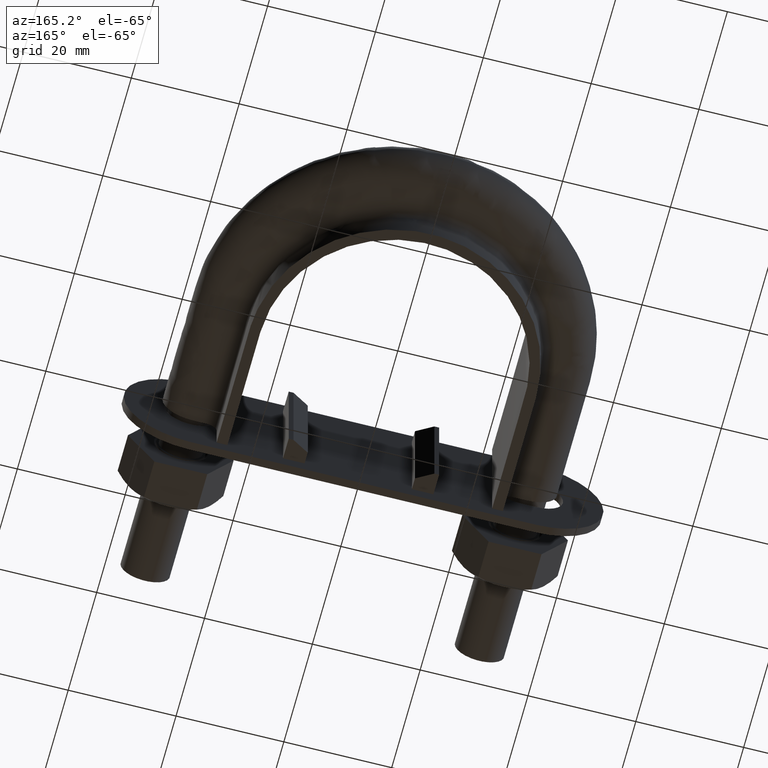
[diagram: clean part render]
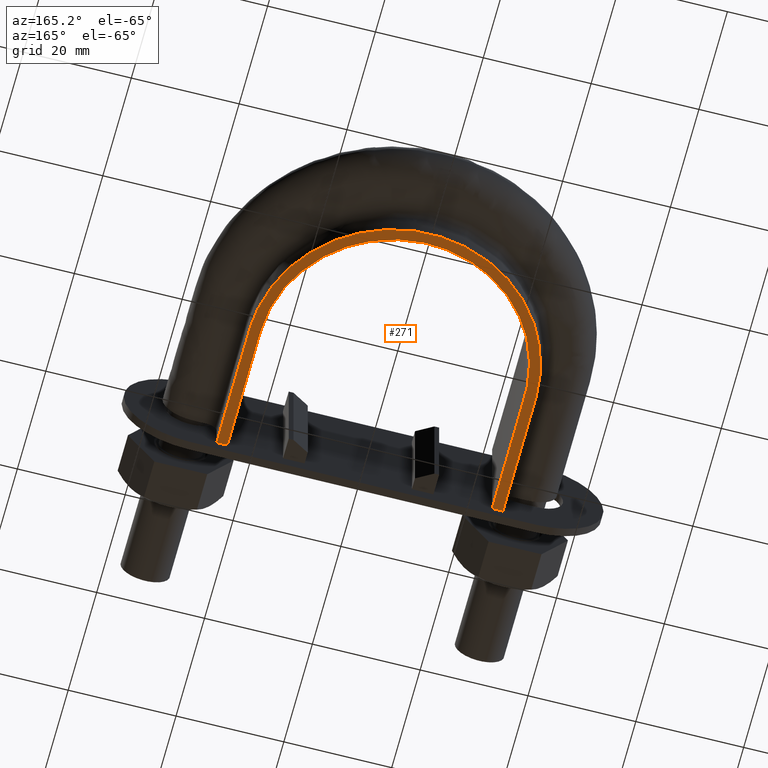
[diagram: same view with one face highlighted and labeled with its STEP entity id]
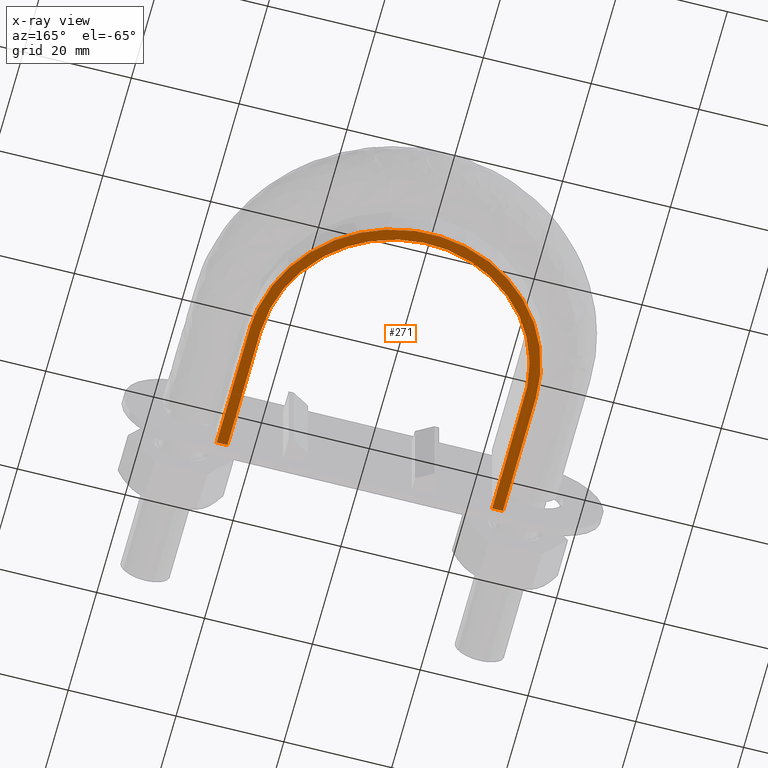
[diagram: x-ray of the same camera — body ghosted, the highlighted face saturated]
A machine part, auxiliary view. The second image highlights one B-rep face of the part: STEP entity #271.
The next image is the same camera in x-ray: the body ghosted, the highlighted face saturated — about 0% of this face is hidden behind the body in this view.
In plain terms, the highlighted planar face has unit normal (0, 0, 1).
Its self-contained STEP definition (entity closure, byte-faithful):
#271 = ADVANCED_FACE( '', ( #391 ), #392, .F. );
#391 = FACE_OUTER_BOUND( '', #649, .T. );
#392 = PLANE( '', #650 );
#649 = EDGE_LOOP( '', ( #1765, #1766, #1767, #1768 ) );
#650 = AXIS2_PLACEMENT_3D( '', #1769, #1770, #1771 );
#1765 = ORIENTED_EDGE( '', *, *, #2555, .F. );
#1766 = ORIENTED_EDGE( '', *, *, #2549, .F. );
#1767 = ORIENTED_EDGE( '', *, *, #2558, .T. );
#1768 = ORIENTED_EDGE( '', *, *, #2553, .F. );
#1769 = CARTESIAN_POINT( '', ( 40.0000000000000, 103.300000000000, -12.5000000000000 ) );
#1770 = DIRECTION( '', ( 0.000000000000000, 0.000000000000000, 1.00000000000000 ) );
#1771 = DIRECTION( '', ( 1.22460635382238E-016, 1.00000000000000, 0.000000000000000 ) );
#2549 = EDGE_CURVE( '', #2792, #2788, #2794, .T. );
#2553 = EDGE_CURVE( '', #2800, #2802, #2803, .T. );
#2555 = EDGE_CURVE( '', #2788, #2800, #2805, .F. );
#2558 = EDGE_CURVE( '', #2792, #2802, #2808, .T. );
#2788 = VERTEX_POINT( '', #3195 );
#2792 = VERTEX_POINT( '', #3201 );
#2794 = LINE( '', #3233, #3234 );
#2800 = VERTEX_POINT( '', #3250 );
#2802 = VERTEX_POINT( '', #3253 );
#2803 = LINE( '', #3254, #3255 );
#2805 = B_SPLINE_CURVE_WITH_KNOTS( '', 3, ( #3287, #3288, #3289, #3290, #3291, #3292, #3293, #3294, #3295, #3296, #3297, #3298, #3299, #3300, #3301, #3302, #3303 ), .UNSPECIFIED., .F., .F., ( 4, 3, 1, 1, 1, 1, 1, 1, 1, 3, 4 ), ( -7.85424354243542, -7.00000000000000, -6.50000000000000, -6.00000000000000, -5.00000000000000, -4.00000000000000, -3.00000000000000, -2.00000000000000, -1.50000000000000, -1.00000000000000, -0.145756457564576 ), .UNSPECIFIED. );
#2808 = B_SPLINE_CURVE_WITH_KNOTS( '', 3, ( #3388, #3389, #3390, #3391, #3392, #3393, #3394, #3395, #3396, #3397, #3398, #3399, #3400, #3401, #3402, #3403, #3404 ), .UNSPECIFIED., .F., .F., ( 4, 3, 1, 1, 1, 1, 1, 1, 1, 3, 4 ), ( 0.145756457564575, 1.00000000000000, 1.50000000000000, 2.00000000000000, 3.00000000000000, 4.00000000000000, 5.00000000000000, 6.00000000000000, 6.50000000000000, 7.00000000000000, 7.85424354243542 ), .UNSPECIFIED. );
#3195 = CARTESIAN_POINT( '', ( -24.5500000000000, 33.3000000000000, -12.5000000000000 ) );
#3201 = CARTESIAN_POINT( '', ( -26.5500000000000, 33.3000000000000, -12.5000000000000 ) );
#3233 = CARTESIAN_POINT( '', ( -40.0000000000000, 33.3000000000000, -12.5000000000000 ) );
#3234 = VECTOR( '', #4067, 1000.00000000000 );
#3250 = CARTESIAN_POINT( '', ( 24.5500000000000, 33.3000000000000, -12.5000000000000 ) );
#3253 = CARTESIAN_POINT( '', ( 26.5500000000000, 33.3000000000000, -12.5000000000000 ) );
#3254 = CARTESIAN_POINT( '', ( -40.0000000000000, 33.3000000000000, -12.5000000000000 ) );
#3255 = VECTOR( '', #4070, 1000.00000000000 );
#3287 = CARTESIAN_POINT( '', ( 24.5500000000000, 33.3000000000000, -12.5000000000000 ) );
#3288 = CARTESIAN_POINT( '', ( 24.5500000000000, 41.0166666666667, -12.5000000000000 ) );
#3289 = CARTESIAN_POINT( '', ( 24.5500000000000, 48.7333333333333, -12.5000000000000 ) );
#3290 = CARTESIAN_POINT( '', ( 24.5500000000000, 56.4500000000000, -12.5000000000000 ) );
#3291 = CARTESIAN_POINT( '', ( 24.5500000000000, 58.5780025041717, -12.5000000000000 ) );
#3292 = CARTESIAN_POINT( '', ( 23.9738358905282, 62.8798607773325, -12.5000000000000 ) );
#3293 = CARTESIAN_POINT( '', ( 20.6884777838097, 70.8633071998794, -12.5000000000000 ) );
#3294 = CARTESIAN_POINT( '', ( 12.8483754366917, 78.7059313144219, -12.5000000000000 ) );
#3295 = CARTESIAN_POINT( '', ( 1.69986719242917E-014, 82.1470343427890, -12.5000000000000 ) );
#3296 = CARTESIAN_POINT( '', ( -12.8483754366917, 78.7059313144219, -12.5000000000000 ) );
#3297 = CARTESIAN_POINT( '', ( -20.6884777838097, 70.8633071998795, -12.5000000000000 ) );
#3298 = CARTESIAN_POINT( '', ( -23.9738358905281, 62.8798607773325, -12.5000000000000 ) );
#3299 = CARTESIAN_POINT( '', ( -24.5500000000000, 58.5780025041717, -12.5000000000000 ) );
#3300 = CARTESIAN_POINT( '', ( -24.5500000000000, 56.4500000000000, -12.5000000000000 ) );
#3301 = CARTESIAN_POINT( '', ( -24.5500000000000, 48.7333333333333, -12.5000000000000 ) );
#3302 = CARTESIAN_POINT( '', ( -24.5500000000000, 41.0166666666667, -12.5000000000000 ) );
#3303 = CARTESIAN_POINT( '', ( -24.5500000000000, 33.3000000000000, -12.5000000000000 ) );
#3388 = CARTESIAN_POINT( '', ( -26.5500000000000, 33.3000000000000, -12.5000000000000 ) );
#3389 = CARTESIAN_POINT( '', ( -26.5500000000000, 41.0166666666667, -12.5000000000000 ) );
#3390 = CARTESIAN_POINT( '', ( -26.5500000000000, 48.7333333333333, -12.5000000000000 ) );
#3391 = CARTESIAN_POINT( '', ( -26.5500000000000, 56.4500000000000, -12.5000000000000 ) );
#3392 = CARTESIAN_POINT( '', ( -26.5500000000000, 58.7566352991258, -12.5000000000000 ) );
#3393 = CARTESIAN_POINT( '', ( -25.9278217826460, 63.4015410955848, -12.5000000000000 ) );
#3394 = CARTESIAN_POINT( '', ( -22.3733615438456, 72.0387447403505, -12.5000000000000 ) );
#3395 = CARTESIAN_POINT( '', ( -13.8952542493119, 80.5185918589213, -12.5000000000000 ) );
#3396 = CARTESIAN_POINT( '', ( 2.46276388223340E-014, 84.2407040705393, -12.5000000000000 ) );
#3397 = CARTESIAN_POINT( '', ( 13.8952542493119, 80.5185918589213, -12.5000000000000 ) );
#3398 = CARTESIAN_POINT( '', ( 22.3733615438457, 72.0387447403505, -12.5000000000000 ) );
#3399 = CARTESIAN_POINT( '', ( 25.9278217826460, 63.4015410955847, -12.5000000000000 ) );
#3400 = CARTESIAN_POINT( '', ( 26.5500000000000, 58.7566352991258, -12.5000000000000 ) );
#3401 = CARTESIAN_POINT( '', ( 26.5500000000000, 56.4500000000000, -12.5000000000000 ) );
#3402 = CARTESIAN_POINT( '', ( 26.5500000000000, 48.7333333333333, -12.5000000000000 ) );
#3403 = CARTESIAN_POINT( '', ( 26.5500000000000, 41.0166666666667, -12.5000000000000 ) );
#3404 = CARTESIAN_POINT( '', ( 26.5500000000000, 33.3000000000000, -12.5000000000000 ) );
#4067 = DIRECTION( '', ( 1.00000000000000, -1.22460635382238E-016, 0.000000000000000 ) );
#4070 = DIRECTION( '', ( 1.00000000000000, -1.22460635382238E-016, 0.000000000000000 ) );